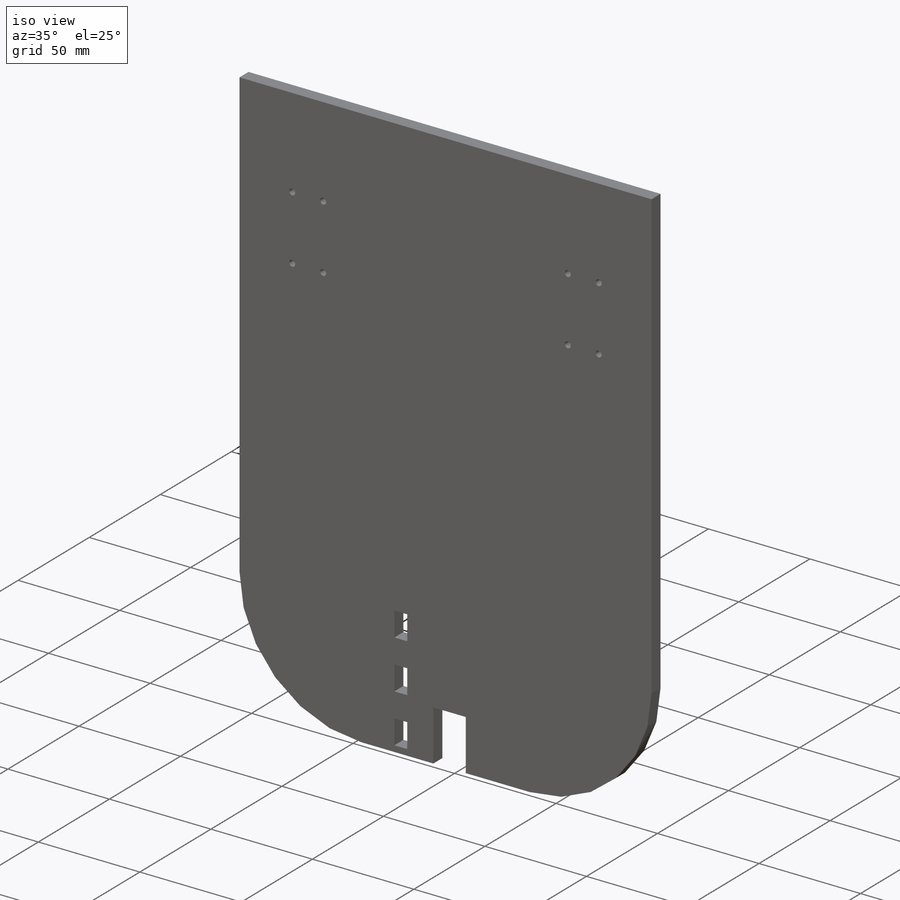
[diagram: iso view]
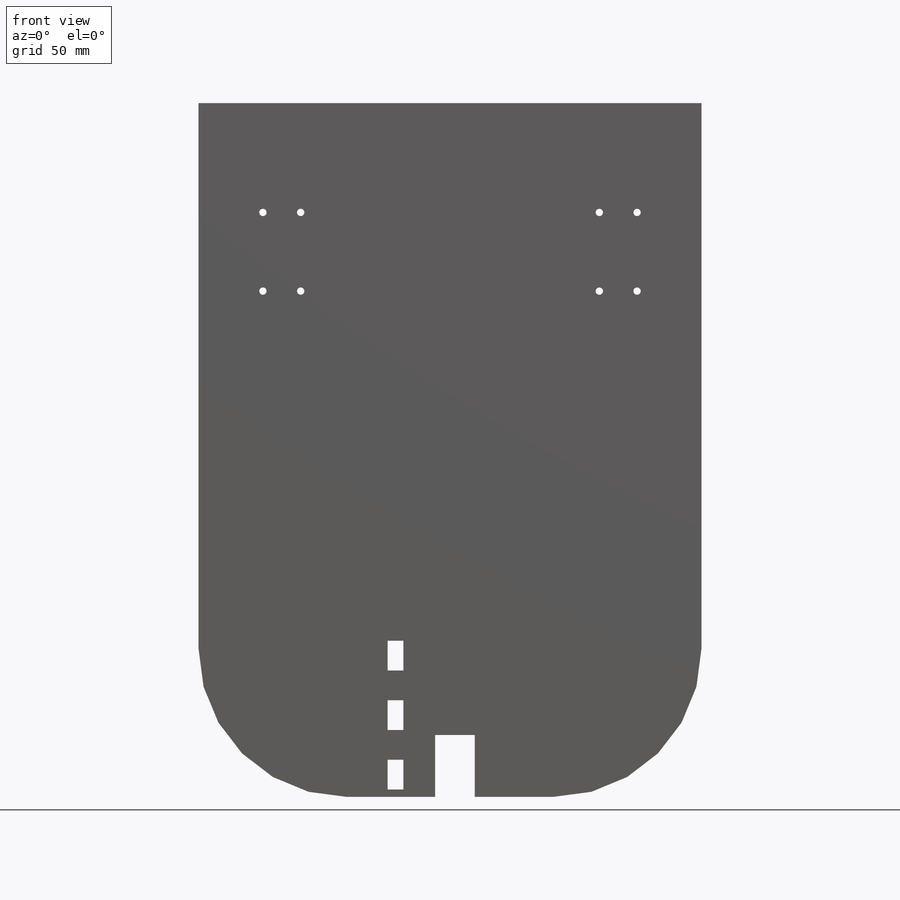
[diagram: front view]
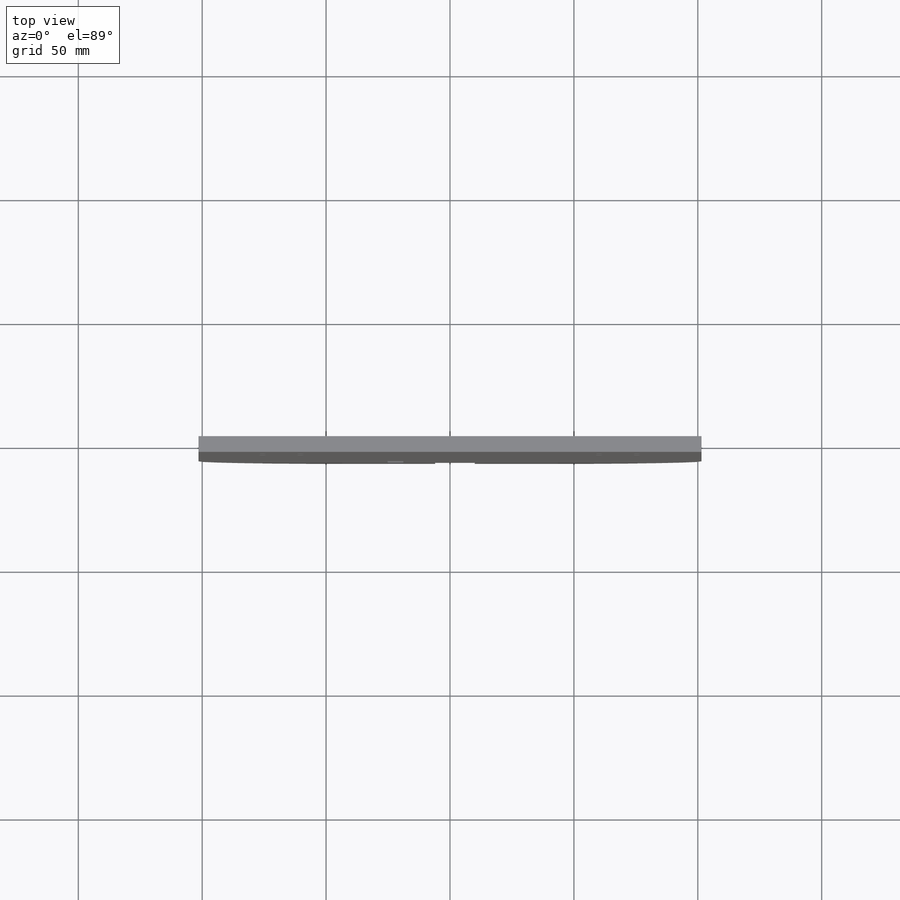
[diagram: top view]
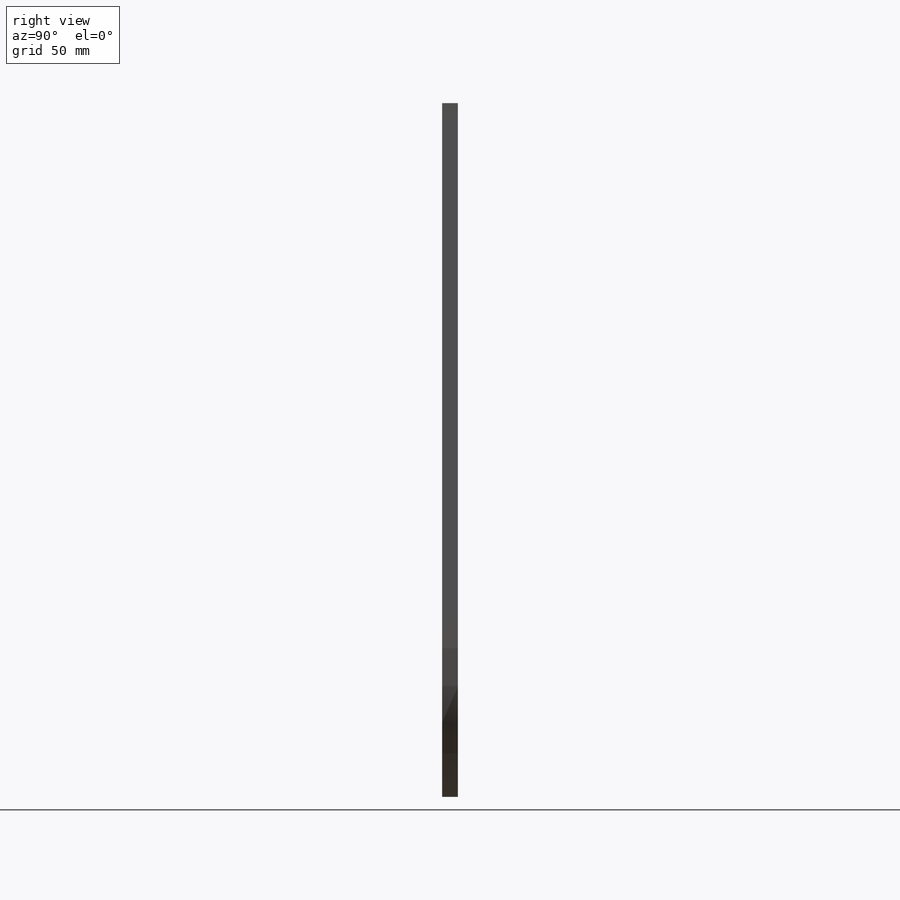
[diagram: right view]
SOLIDWORKS PART (.sldprt)
format: sldprt  version: not decoded by parser v0  size: 233,472 bytes
history: native  units: mm
features: sketch x3, cut_extrude x2, material x1, extrude x1, fillet x1 (+11 scaffold rows collapsed)
feature tree (19):
  scaffold x11  (default folders/planes/origin — collapsed)
  material  "Material <not specified>"
  sketch  "Sketch1"  dims[D1=203.0mm D2=280.0mm]
  extrude  "Boss-Extrude1"  Depth=6.35mm
  sketch  "Sketch2"  dims[D1=2.95mm D2=15.24mm D3=31.75mm D4=60.0mm D5=26.0mm]
  cut_extrude  "Cut-Extrude1"  [1 undecoded]
  sketch  "Sketch3"  dims[c1.D1=12.0mm c1.D2=6.35mm c1.D3=3.0mm c1.D4=12.0mm c1.D5=12.0mm c1.D6=22.0mm c1.D7=10.16mm c1.D8=40.0mm c2.D7=12.5mm c2.D8=25.0mm c3.D7=25.0mm c3.D8=16.0mm c3.D9=2.0mm]
  cut_extrude  "Cut-Extrude2"  [1 undecoded]
  fillet  "Fillet1"  Radius=60mm
decode coverage: 5 of 7 modeling features carry decoded parameters
note: 2 parameter values undecoded
note: suppression state not decoded; provenance and decode notes live in map.json
